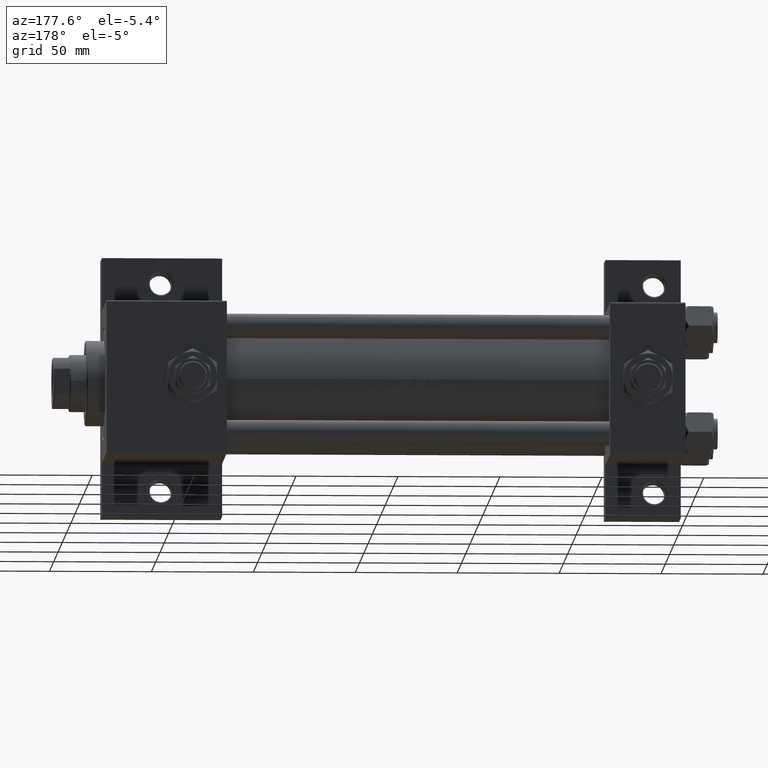
[diagram: clean part render]
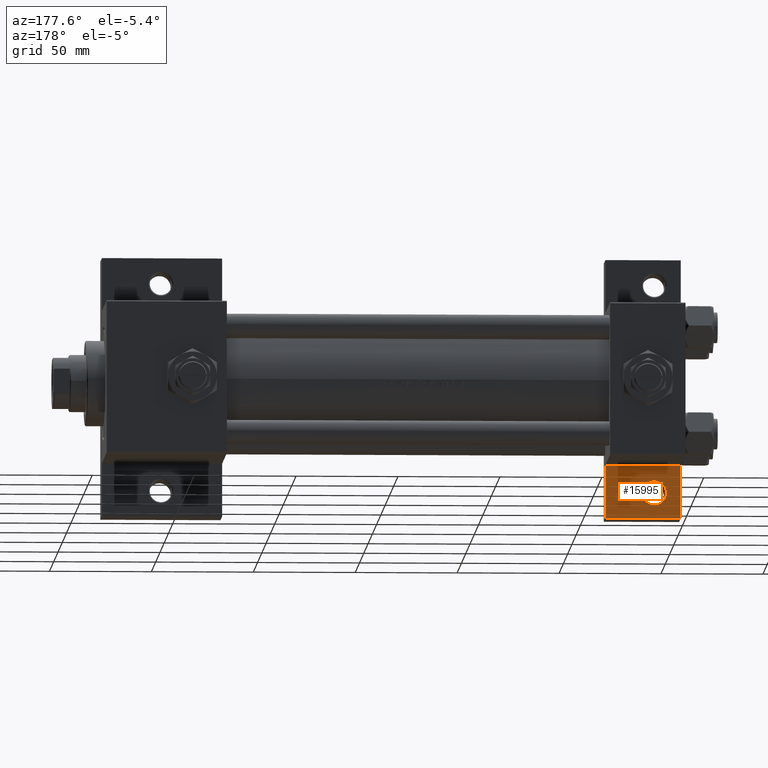
[diagram: same view with one face highlighted and labeled with its STEP entity id]
A machine part, auxiliary view. The second image highlights one B-rep face of the part: STEP entity #15995.
In plain terms, the highlighted planar face has unit normal (0, -1, 0).
Its self-contained STEP definition (entity closure, byte-faithful):
#1299 = CIRCLE ( 'NONE', #25062, 5.999499999999966526 ) ;
#1319 = EDGE_LOOP ( 'NONE', ( #37231, #41586 ) ) ;
#1866 = VERTEX_POINT ( 'NONE', #25243 ) ;
#3908 = DIRECTION ( 'NONE',  ( -1.000000000000000000, 0.000000000000000000, 0.000000000000000000 ) ) ;
#3960 = CARTESIAN_POINT ( 'NONE',  ( 1.595073532467135441E-14, 63.50000000000000000, -18.50000000000000355 ) ) ;
#5267 = CARTESIAN_POINT ( 'NONE',  ( 37.00000000000001421, 63.50000000000001421, -18.50000000000000355 ) ) ;
#6617 = CARTESIAN_POINT ( 'NONE',  ( 1.595073532467135441E-14, 63.50000000000000000, -18.50000000000000355 ) ) ;
#8243 = FACE_BOUND ( 'NONE', #1319, .T. ) ;
#9042 = VERTEX_POINT ( 'NONE', #30970 ) ;
#9157 = DIRECTION ( 'NONE',  ( -1.000000000000000000, 0.000000000000000000, -0.000000000000000000 ) ) ;
#9177 = ORIENTED_EDGE ( 'NONE', *, *, #14848, .T. ) ;
#10057 = CARTESIAN_POINT ( 'NONE',  ( 0.000000000000000000, 37.49999999999999289, -18.49999999999999645 ) ) ;
#11730 = VECTOR ( 'NONE', #24125, 1000.000000000000000 ) ;
#11970 = PLANE ( 'NONE',  #30233 ) ;
#13464 = VERTEX_POINT ( 'NONE', #26849 ) ;
#13936 = EDGE_LOOP ( 'NONE', ( #9177, #21607, #23205, #30765 ) ) ;
#14663 = AXIS2_PLACEMENT_3D ( 'NONE', #33906, #26698, #3908 ) ;
#14848 = EDGE_CURVE ( 'NONE', #32458, #21373, #27957, .T. ) ;
#14996 = DIRECTION ( 'NONE',  ( 0.000000000000000000, 0.000000000000000000, -1.000000000000000000 ) ) ;
#15995 = ADVANCED_FACE ( 'NONE', ( #8243, #39146 ), #11970, .F. ) ;
#16339 = EDGE_CURVE ( 'NONE', #1866, #32458, #29410, .T. ) ;
#17079 = CARTESIAN_POINT ( 'NONE',  ( 0.000000000000000000, 0.000000000000000000, -18.50000000000000000 ) ) ;
#17148 = DIRECTION ( 'NONE',  ( 2.668805347656626678E-16, 1.000000000000000000, 0.000000000000000000 ) ) ;
#17683 = VECTOR ( 'NONE', #17148, 1000.000000000000000 ) ;
#18589 = CIRCLE ( 'NONE', #14663, 5.999499999999966526 ) ;
#19393 = DIRECTION ( 'NONE',  ( 0.000000000000000000, 0.000000000000000000, -1.000000000000000000 ) ) ;
#21373 = VERTEX_POINT ( 'NONE', #10057 ) ;
#21607 = ORIENTED_EDGE ( 'NONE', *, *, #44356, .T. ) ;
#23205 = ORIENTED_EDGE ( 'NONE', *, *, #29589, .T. ) ;
#24125 = DIRECTION ( 'NONE',  ( 1.000000000000000000, -3.750753461571474945E-16, 0.000000000000000000 ) ) ;
#25062 = AXIS2_PLACEMENT_3D ( 'NONE', #26396, #14996, #48485 ) ;
#25243 = CARTESIAN_POINT ( 'NONE',  ( 37.00000000000001421, 63.50000000000000000, -18.50000000000000355 ) ) ;
#26396 = CARTESIAN_POINT ( 'NONE',  ( 12.99999999999999822, 50.99999999999997868, -18.50000000000000000 ) ) ;
#26698 = DIRECTION ( 'NONE',  ( 0.000000000000000000, 0.000000000000000000, -1.000000000000000000 ) ) ;
#26849 = CARTESIAN_POINT ( 'NONE',  ( 18.99949999999996564, 50.99999999999997868, -18.50000000000000000 ) ) ;
#27957 = LINE ( 'NONE', #31686, #37308 ) ;
#29410 = LINE ( 'NONE', #6617, #42909 ) ;
#29589 = EDGE_CURVE ( 'NONE', #42115, #1866, #43192, .T. ) ;
#30233 = AXIS2_PLACEMENT_3D ( 'NONE', #17079, #19393, #9157 ) ;
#30765 = ORIENTED_EDGE ( 'NONE', *, *, #16339, .T. ) ;
#30970 = CARTESIAN_POINT ( 'NONE',  ( 7.000500000000030809, 50.99999999999997868, -18.50000000000000000 ) ) ;
#31686 = CARTESIAN_POINT ( 'NONE',  ( 1.595073532467135757E-14, 63.50000000000001421, -18.50000000000000355 ) ) ;
#32458 = VERTEX_POINT ( 'NONE', #3960 ) ;
#33637 = EDGE_CURVE ( 'NONE', #13464, #9042, #18589, .T. ) ;
#33906 = CARTESIAN_POINT ( 'NONE',  ( 12.99999999999999822, 50.99999999999997868, -18.50000000000000000 ) ) ;
#34559 = LINE ( 'NONE', #41994, #11730 ) ;
#37053 = EDGE_CURVE ( 'NONE', #9042, #13464, #1299, .T. ) ;
#37231 = ORIENTED_EDGE ( 'NONE', *, *, #33637, .T. ) ;
#37308 = VECTOR ( 'NONE', #39602, 1000.000000000000000 ) ;
#39146 = FACE_OUTER_BOUND ( 'NONE', #13936, .T. ) ;
#39602 = DIRECTION ( 'NONE',  ( -2.877097866686192789E-16, -1.000000000000000000, 0.000000000000000000 ) ) ;
#41586 = ORIENTED_EDGE ( 'NONE', *, *, #37053, .T. ) ;
#41994 = CARTESIAN_POINT ( 'NONE',  ( 8.470280871287256020E-15, 37.50000000000002842, -18.49999999999999645 ) ) ;
#42115 = VERTEX_POINT ( 'NONE', #48653 ) ;
#42909 = VECTOR ( 'NONE', #47275, 1000.000000000000000 ) ;
#43192 = LINE ( 'NONE', #5267, #17683 ) ;
#44356 = EDGE_CURVE ( 'NONE', #21373, #42115, #34559, .T. ) ;
#47275 = DIRECTION ( 'NONE',  ( -1.000000000000000000, 0.000000000000000000, 0.000000000000000000 ) ) ;
#48485 = DIRECTION ( 'NONE',  ( -1.000000000000000000, 0.000000000000000000, 0.000000000000000000 ) ) ;
#48653 = CARTESIAN_POINT ( 'NONE',  ( 37.00000000000000711, 37.50000000000000711, -18.50000000000000355 ) ) ;